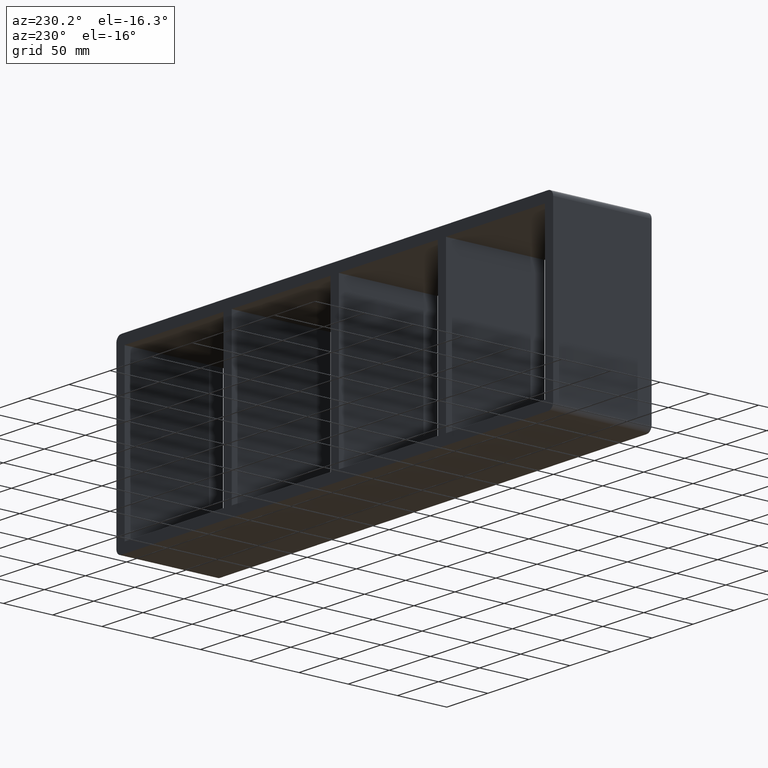
[diagram: clean part render]
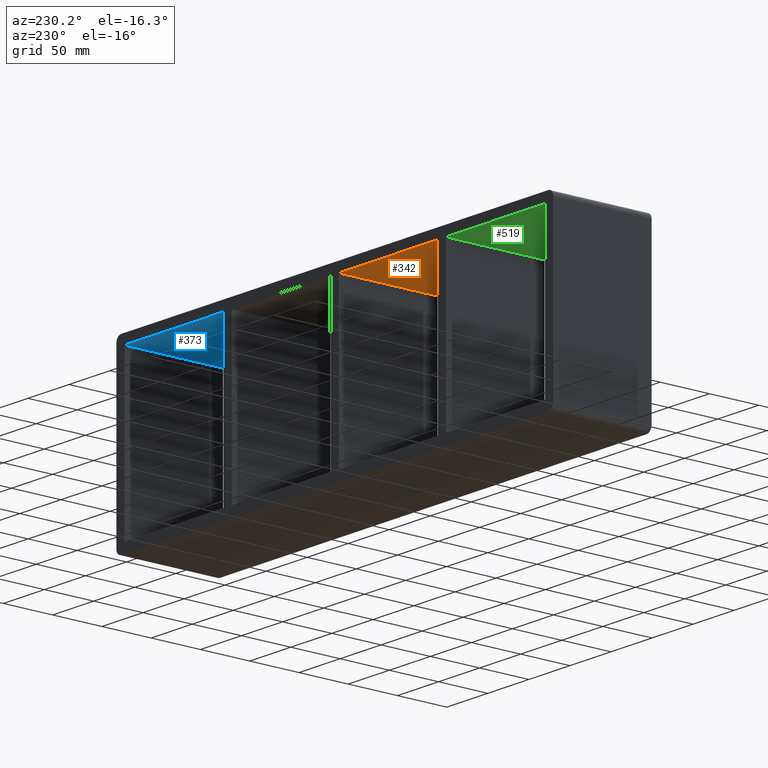
[diagram: same view with three faces highlighted in distinct colors, each labeled with its STEP entity id]
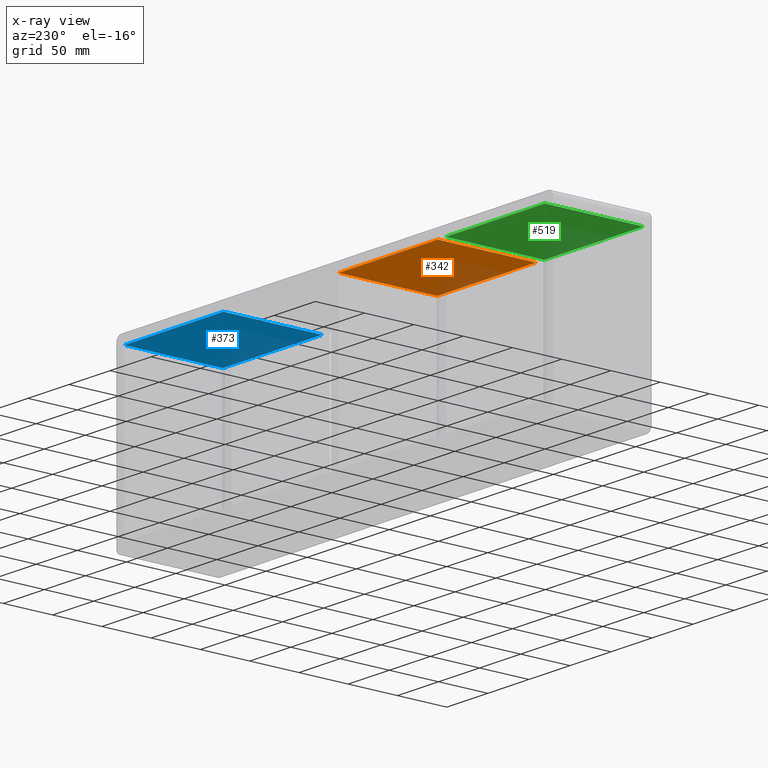
[diagram: x-ray of the same camera — body ghosted, the three highlighted faces saturated]
A machine part, auxiliary view with three faces highlighted in distinct colors.
The next image is the same camera in x-ray (body ghosted, the three faces saturated) — at least one of them is partly hidden behind the body in this view.
Their STEP definitions:

[orange] entity #342 — the highlighted planar face has unit normal (0, 0, 1).
#155=CARTESIAN_POINT('',(-5.000000000017106,-3.0,79.750000000000014));
#156=VERTEX_POINT('',#155);
#163=CARTESIAN_POINT('',(-5.000000000017106,97.0,79.750000000000014));
#164=VERTEX_POINT('',#163);
#165=CARTESIAN_POINT('',(-5.000000000017115,97.0,79.750000000000014));
#166=DIRECTION('',(0.0,-1.0,0.0));
#167=VECTOR('',#166,100.0);
#168=LINE('',#165,#167);
#169=EDGE_CURVE('',#164,#156,#168,.T.);
#312=CARTESIAN_POINT('',(-256.00000000000006,0.0,79.750000000000014));
#313=DIRECTION('',(0.0,0.0,1.0));
#314=DIRECTION('',(1.0,0.0,0.0));
#315=AXIS2_PLACEMENT_3D('',#312,#313,#314);
#316=PLANE('',#315);
#317=ORIENTED_EDGE('',*,*,#169,.T.);
#318=CARTESIAN_POINT('',(-125.50000000000637,-3.0,79.750000000000014));
#319=VERTEX_POINT('',#318);
#320=CARTESIAN_POINT('',(-125.50000000000637,-3.0,79.750000000000014));
#321=DIRECTION('',(1.0,0.0,0.0));
#322=VECTOR('',#321,120.49999999998926);
#323=LINE('',#320,#322);
#324=EDGE_CURVE('',#319,#156,#323,.T.);
#325=ORIENTED_EDGE('',*,*,#324,.F.);
#326=CARTESIAN_POINT('',(-125.50000000000637,97.0,79.750000000000014));
#327=VERTEX_POINT('',#326);
#328=CARTESIAN_POINT('',(-125.50000000000638,-3.0,79.750000000000014));
#329=DIRECTION('',(0.0,1.0,0.0));
#330=VECTOR('',#329,100.0);
#331=LINE('',#328,#330);
#332=EDGE_CURVE('',#319,#327,#331,.T.);
#333=ORIENTED_EDGE('',*,*,#332,.T.);
#334=CARTESIAN_POINT('',(-5.00000000001711,97.0,79.750000000000014));
#335=DIRECTION('',(-1.0,0.0,0.0));
#336=VECTOR('',#335,120.49999999998926);
#337=LINE('',#334,#336);
#338=EDGE_CURVE('',#164,#327,#337,.T.);
#339=ORIENTED_EDGE('',*,*,#338,.F.);
#340=EDGE_LOOP('',(#317,#325,#333,#339));
#341=FACE_OUTER_BOUND('',#340,.T.);
#342=ADVANCED_FACE('',(#341),#316,.F.);

[blue] entity #373 — the highlighted planar face has unit normal (0, 0, 1).
#113=CARTESIAN_POINT('',(135.49999999999363,-3.0,79.750000000000014));
#114=VERTEX_POINT('',#113);
#131=CARTESIAN_POINT('',(135.49999999999363,97.0,79.750000000000014));
#132=VERTEX_POINT('',#131);
#139=CARTESIAN_POINT('',(135.49999999999363,-3.0,79.750000000000014));
#140=DIRECTION('',(0.0,1.0,0.0));
#141=VECTOR('',#140,100.0);
#142=LINE('',#139,#141);
#143=EDGE_CURVE('',#114,#132,#142,.T.);
#343=CARTESIAN_POINT('',(-256.00000000000006,0.0,79.750000000000014));
#344=DIRECTION('',(0.0,0.0,1.0));
#345=DIRECTION('',(1.0,0.0,0.0));
#346=AXIS2_PLACEMENT_3D('',#343,#344,#345);
#347=PLANE('',#346);
#348=ORIENTED_EDGE('',*,*,#143,.T.);
#349=CARTESIAN_POINT('',(256.00000000000006,97.0,79.750000000000014));
#350=VERTEX_POINT('',#349);
#351=CARTESIAN_POINT('',(256.0,97.0,79.750000000000014));
#352=DIRECTION('',(-1.0,0.0,0.0));
#353=VECTOR('',#352,120.50000000000634);
#354=LINE('',#351,#353);
#355=EDGE_CURVE('',#350,#132,#354,.T.);
#356=ORIENTED_EDGE('',*,*,#355,.F.);
#357=CARTESIAN_POINT('',(256.00000000000006,-3.0,79.750000000000014));
#358=VERTEX_POINT('',#357);
#359=CARTESIAN_POINT('',(256.00000000000006,-3.0,79.750000000000014));
#360=DIRECTION('',(0.0,1.0,0.0));
#361=VECTOR('',#360,100.0);
#362=LINE('',#359,#361);
#363=EDGE_CURVE('',#358,#350,#362,.T.);
#364=ORIENTED_EDGE('',*,*,#363,.F.);
#365=CARTESIAN_POINT('',(135.49999999999366,-3.0,79.750000000000014));
#366=DIRECTION('',(1.0,0.0,0.0));
#367=VECTOR('',#366,120.50000000000634);
#368=LINE('',#365,#367);
#369=EDGE_CURVE('',#114,#358,#368,.T.);
#370=ORIENTED_EDGE('',*,*,#369,.F.);
#371=EDGE_LOOP('',(#348,#356,#364,#370));
#372=FACE_OUTER_BOUND('',#371,.T.);
#373=ADVANCED_FACE('',(#372),#347,.F.);

[green] entity #519 — the highlighted planar face has unit normal (0, 0, 1).
#403=CARTESIAN_POINT('',(-135.50000000001711,-3.0,79.750000000000014));
#404=VERTEX_POINT('',#403);
#411=CARTESIAN_POINT('',(-135.50000000001711,97.0,79.750000000000014));
#412=VERTEX_POINT('',#411);
#413=CARTESIAN_POINT('',(-135.50000000001711,97.0,79.750000000000014));
#414=DIRECTION('',(0.0,-1.0,0.0));
#415=VECTOR('',#414,100.0);
#416=LINE('',#413,#415);
#417=EDGE_CURVE('',#412,#404,#416,.T.);
#489=CARTESIAN_POINT('',(-256.00000000000006,0.0,79.750000000000014));
#490=DIRECTION('',(0.0,0.0,1.0));
#491=DIRECTION('',(1.0,0.0,0.0));
#492=AXIS2_PLACEMENT_3D('',#489,#490,#491);
#493=PLANE('',#492);
#494=ORIENTED_EDGE('',*,*,#417,.T.);
#495=CARTESIAN_POINT('',(-256.00000000000006,-3.0,79.750000000000014));
#496=VERTEX_POINT('',#495);
#497=CARTESIAN_POINT('',(-256.00000000000006,-3.0,79.750000000000014));
#498=DIRECTION('',(1.0,0.0,0.0));
#499=VECTOR('',#498,120.49999999998295);
#500=LINE('',#497,#499);
#501=EDGE_CURVE('',#496,#404,#500,.T.);
#502=ORIENTED_EDGE('',*,*,#501,.F.);
#503=CARTESIAN_POINT('',(-256.00000000000006,97.0,79.750000000000014));
#504=VERTEX_POINT('',#503);
#505=CARTESIAN_POINT('',(-256.00000000000006,-3.0,79.750000000000014));
#506=DIRECTION('',(0.0,1.0,0.0));
#507=VECTOR('',#506,100.0);
#508=LINE('',#505,#507);
#509=EDGE_CURVE('',#496,#504,#508,.T.);
#510=ORIENTED_EDGE('',*,*,#509,.T.);
#511=CARTESIAN_POINT('',(-135.50000000001711,97.0,79.750000000000014));
#512=DIRECTION('',(-1.0,0.0,0.0));
#513=VECTOR('',#512,120.49999999998295);
#514=LINE('',#511,#513);
#515=EDGE_CURVE('',#412,#504,#514,.T.);
#516=ORIENTED_EDGE('',*,*,#515,.F.);
#517=EDGE_LOOP('',(#494,#502,#510,#516));
#518=FACE_OUTER_BOUND('',#517,.T.);
#519=ADVANCED_FACE('',(#518),#493,.F.);